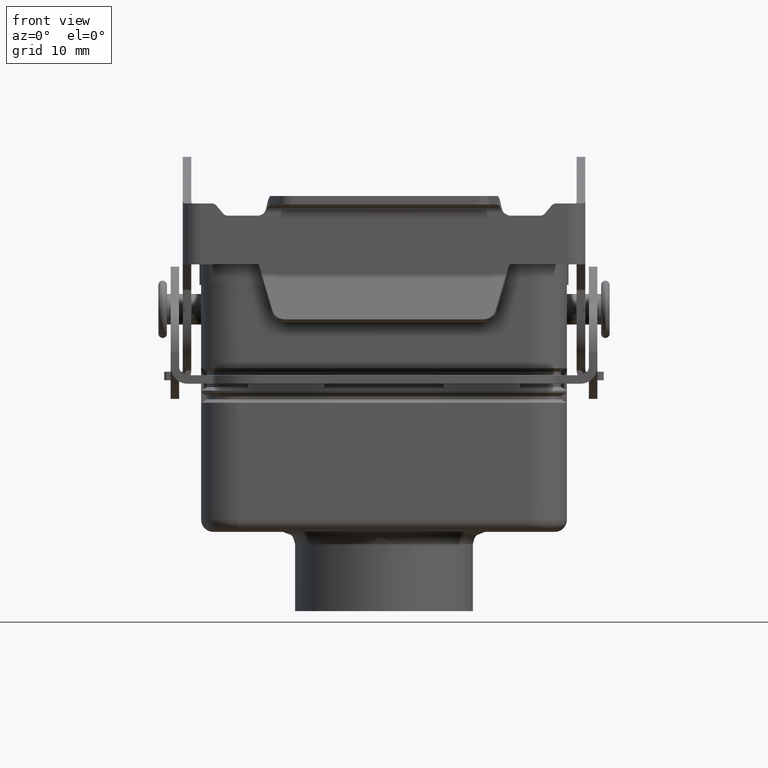
[diagram: clean part render]
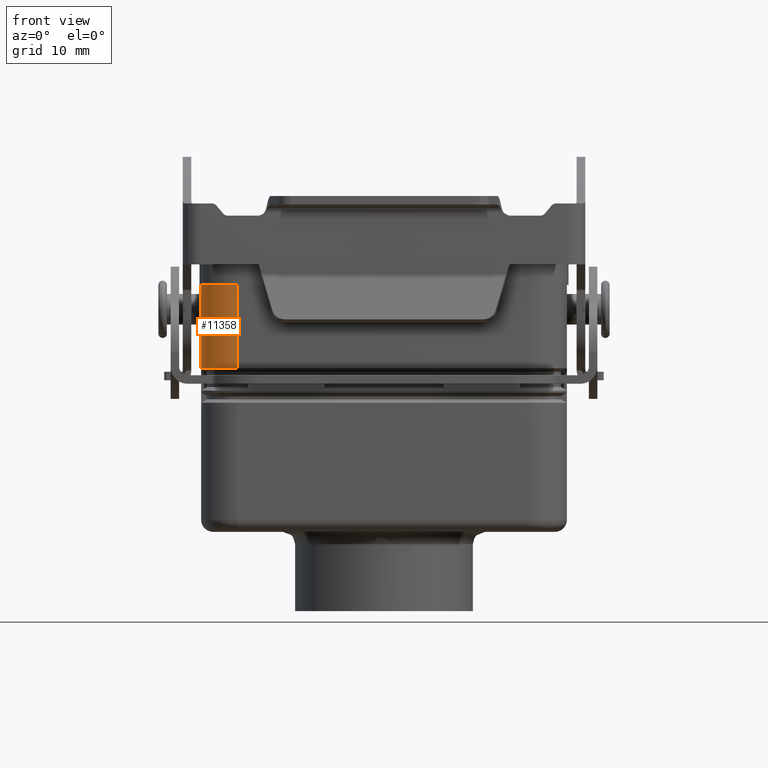
[diagram: same view with one face highlighted and labeled with its STEP entity id]
A machine part, front view. The second image highlights one B-rep face of the part: STEP entity #11358.
In plain terms, the highlighted cylindrical surface (partial cylindrical patch) has radius 6 mm, axis along (0, 0, -1).
Its self-contained STEP definition (entity closure, byte-faithful):
#10542=CARTESIAN_POINT('',(-29.999999999999996,-15.750000000000002,-9.672649730810383));
#10543=VERTEX_POINT('',#10542);
#10550=CARTESIAN_POINT('',(-30.0,-15.750000000000004,4.000000000000002));
#10551=VERTEX_POINT('',#10550);
#10552=CARTESIAN_POINT('',(-30.0,-15.750000000000004,4.000000000000002));
#10553=DIRECTION('',(0.0,0.0,-1.0));
#10554=VECTOR('',#10553,13.672649730810384);
#10555=LINE('',#10552,#10554);
#10556=EDGE_CURVE('',#10551,#10543,#10555,.T.);
#11060=CARTESIAN_POINT('',(-24.000000000000004,-21.750000000000007,-9.672649730810374));
#11061=VERTEX_POINT('',#11060);
#11062=CARTESIAN_POINT('',(-23.999999999999993,-15.750000000000002,-9.672649730810374));
#11063=DIRECTION('',(0.0,0.0,1.0));
#11064=DIRECTION('',(-1.0,0.0,0.0));
#11065=AXIS2_PLACEMENT_3D('',#11062,#11063,#11064);
#11066=CIRCLE('',#11065,6.000000000000001);
#11067=EDGE_CURVE('',#10543,#11061,#11066,.T.);
#11324=CARTESIAN_POINT('',(-23.999999999999993,-21.750000000000007,4.000000000000002));
#11325=VERTEX_POINT('',#11324);
#11332=CARTESIAN_POINT('',(-23.999999999999993,-21.750000000000007,4.000000000000002));
#11333=DIRECTION('',(0.0,0.0,-1.0));
#11334=VECTOR('',#11333,13.672649730810376);
#11335=LINE('',#11332,#11334);
#11336=EDGE_CURVE('',#11325,#11061,#11335,.T.);
#11341=CARTESIAN_POINT('',(-23.999999999999993,-15.750000000000002,9.0));
#11342=DIRECTION('',(0.0,0.0,-1.0));
#11343=DIRECTION('',(-1.0,0.0,0.0));
#11344=AXIS2_PLACEMENT_3D('',#11341,#11342,#11343);
#11345=CYLINDRICAL_SURFACE('',#11344,6.000000000000001);
#11346=ORIENTED_EDGE('',*,*,#11067,.T.);
#11347=ORIENTED_EDGE('',*,*,#11336,.F.);
#11348=CARTESIAN_POINT('',(-23.999999999999993,-15.750000000000002,4.000000000000002));
#11349=DIRECTION('',(0.0,0.0,-1.0));
#11350=DIRECTION('',(-1.0,0.0,0.0));
#11351=AXIS2_PLACEMENT_3D('',#11348,#11349,#11350);
#11352=CIRCLE('',#11351,6.000000000000001);
#11353=EDGE_CURVE('',#11325,#10551,#11352,.T.);
#11354=ORIENTED_EDGE('',*,*,#11353,.T.);
#11355=ORIENTED_EDGE('',*,*,#10556,.T.);
#11356=EDGE_LOOP('',(#11346,#11347,#11354,#11355));
#11357=FACE_OUTER_BOUND('',#11356,.T.);
#11358=ADVANCED_FACE('',(#11357),#11345,.T.);